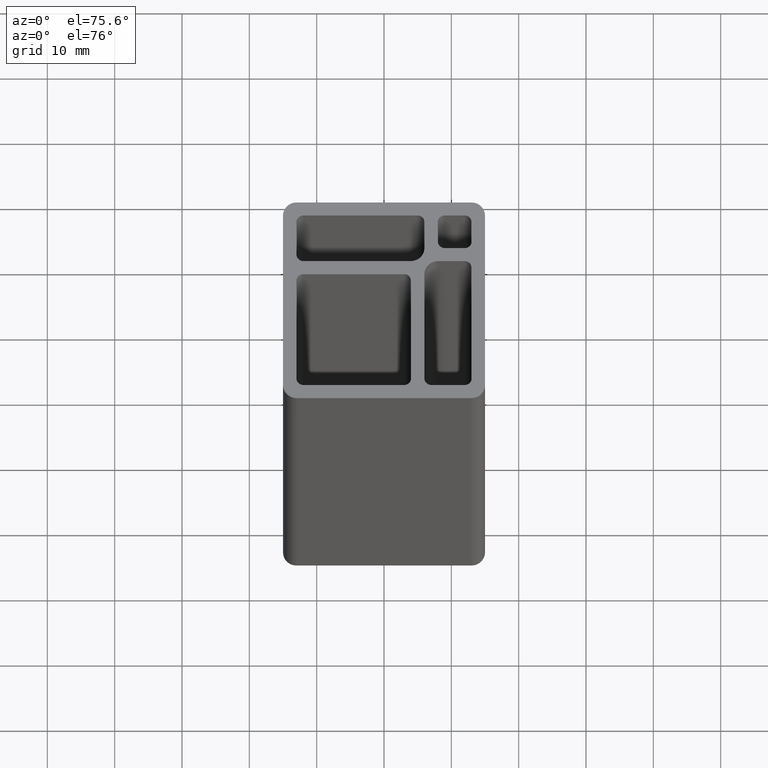
[diagram: clean part render]
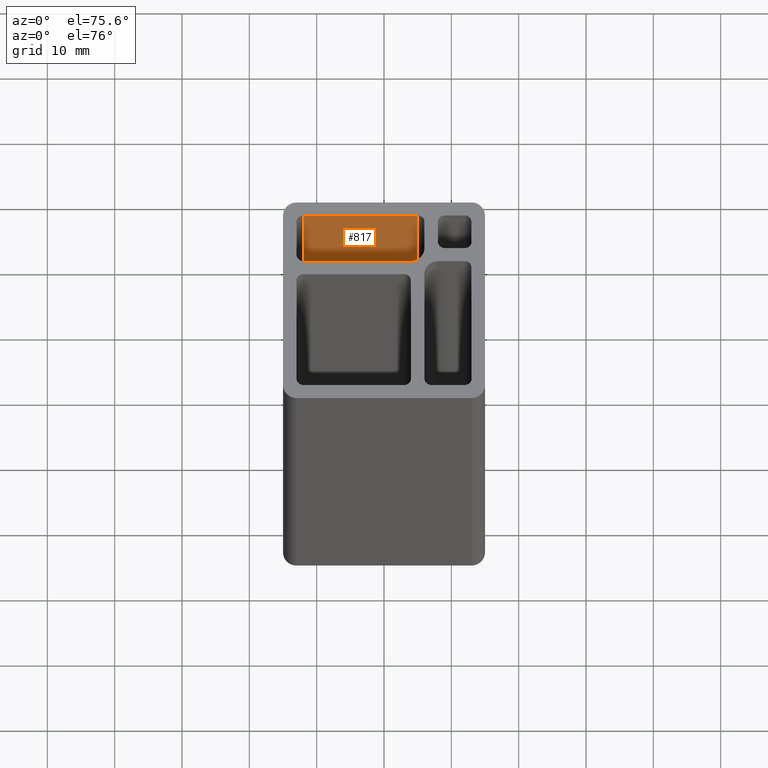
[diagram: same view with one face highlighted and labeled with its STEP entity id]
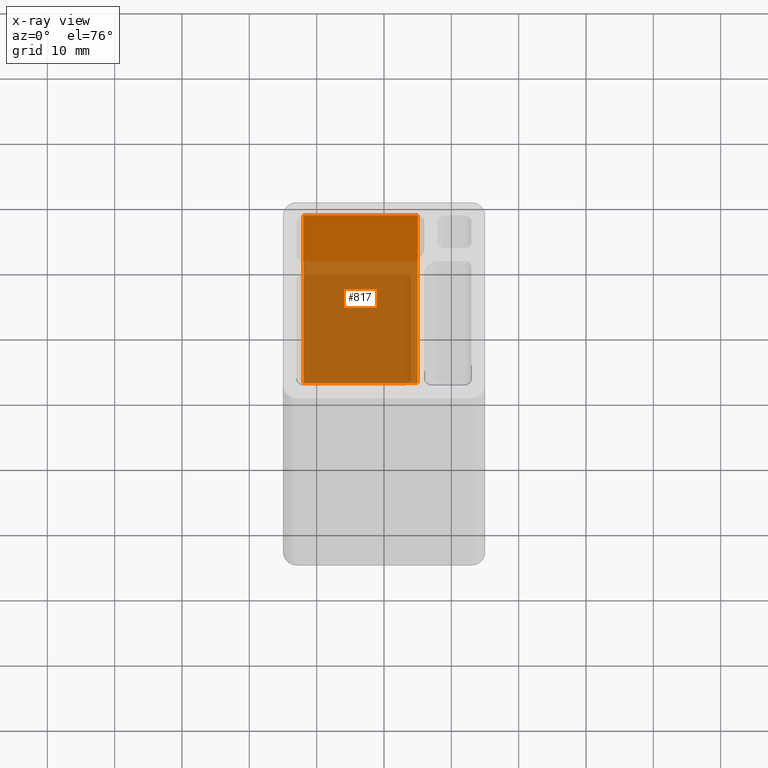
[diagram: x-ray of the same camera — body ghosted, the highlighted face saturated]
A machine part, auxiliary view. The second image highlights one B-rep face of the part: STEP entity #817.
The next image is the same camera in x-ray: the body ghosted, the highlighted face saturated — about 73% of this face is hidden behind the body in this view.
In plain terms, the highlighted planar face has unit normal (0, 1, 0).
Its self-contained STEP definition (entity closure, byte-faithful):
#103=FACE_OUTER_BOUND('',#145,.T.);
#145=EDGE_LOOP('',(#615,#616,#617,#618));
#215=LINE('',#1292,#295);
#216=LINE('',#1295,#296);
#217=LINE('',#1297,#297);
#218=LINE('',#1298,#298);
#295=VECTOR('',#1045,100.);
#296=VECTOR('',#1048,17.);
#297=VECTOR('',#1049,17.);
#298=VECTOR('',#1050,100.);
#375=VERTEX_POINT('',#1288);
#376=VERTEX_POINT('',#1290);
#377=VERTEX_POINT('',#1294);
#378=VERTEX_POINT('',#1296);
#475=EDGE_CURVE('',#376,#375,#215,.T.);
#476=EDGE_CURVE('',#375,#377,#216,.T.);
#477=EDGE_CURVE('',#378,#376,#217,.T.);
#478=EDGE_CURVE('',#378,#377,#218,.T.);
#615=ORIENTED_EDGE('',*,*,#476,.F.);
#616=ORIENTED_EDGE('',*,*,#475,.F.);
#617=ORIENTED_EDGE('',*,*,#477,.F.);
#618=ORIENTED_EDGE('',*,*,#478,.T.);
#785=PLANE('',#881);
#817=ADVANCED_FACE('',(#103),#785,.F.);
#881=AXIS2_PLACEMENT_3D('',#1293,#1046,#1047);
#1045=DIRECTION('',(0.,0.,1.));
#1046=DIRECTION('center_axis',(0.,1.,0.));
#1047=DIRECTION('ref_axis',(-1.,0.,0.));
#1048=DIRECTION('',(1.,0.,0.));
#1049=DIRECTION('',(-1.,0.,0.));
#1050=DIRECTION('',(0.,0.,1.));
#1288=CARTESIAN_POINT('',(-12.,13.,100.));
#1290=CARTESIAN_POINT('',(-12.,13.,0.));
#1292=CARTESIAN_POINT('',(-12.,13.,0.));
#1293=CARTESIAN_POINT('Origin',(5.,13.,0.));
#1294=CARTESIAN_POINT('',(5.,13.,100.));
#1295=CARTESIAN_POINT('',(2.5,13.,100.));
#1296=CARTESIAN_POINT('',(5.,13.,0.));
#1297=CARTESIAN_POINT('',(2.5,13.,0.));
#1298=CARTESIAN_POINT('',(5.,13.,0.));